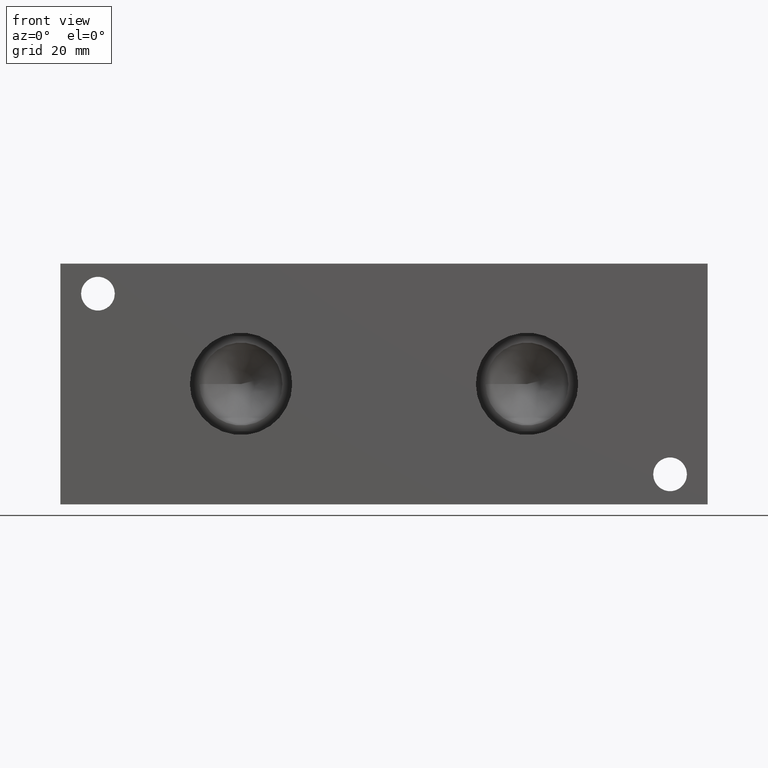
[diagram: clean part render]
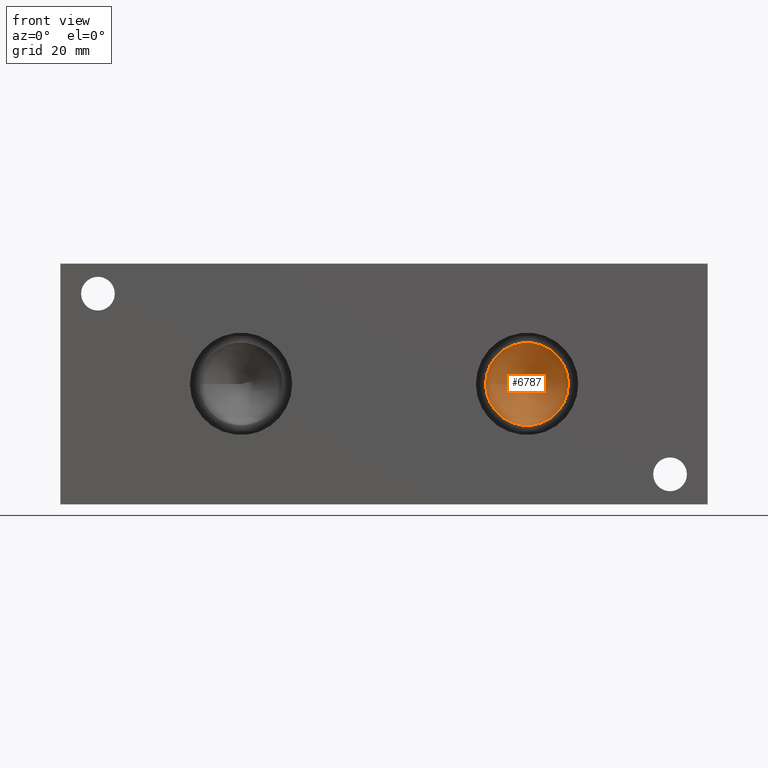
[diagram: same view with one face highlighted and labeled with its STEP entity id]
A machine part, front view. The second image highlights one B-rep face of the part: STEP entity #6787.
In plain terms, the highlighted conical surface has half-angle 60 deg.
Its self-contained STEP definition (entity closure, byte-faithful):
#17=CONICAL_SURFACE('',#7099,4.3688,1.0471975511966);
#95=CIRCLE('',#7100,8.7376);
#96=CIRCLE('',#7101,8.7376);
#697=FACE_OUTER_BOUND('',#1073,.T.);
#1073=EDGE_LOOP('',(#5976,#5977,#5978,#5979));
#1757=LINE('',#11539,#2428);
#2428=VECTOR('',#8351,4.3688);
#3247=VERTEX_POINT('',#11535);
#3248=VERTEX_POINT('',#11536);
#3249=VERTEX_POINT('',#11538);
#4170=EDGE_CURVE('',#3247,#3248,#95,.T.);
#4171=EDGE_CURVE('',#3248,#3249,#1757,.T.);
#4172=EDGE_CURVE('',#3248,#3247,#96,.T.);
#5976=ORIENTED_EDGE('',*,*,#4170,.T.);
#5977=ORIENTED_EDGE('',*,*,#4171,.T.);
#5978=ORIENTED_EDGE('',*,*,#4171,.F.);
#5979=ORIENTED_EDGE('',*,*,#4172,.T.);
#6787=ADVANCED_FACE('',(#697),#17,.F.);
#7099=AXIS2_PLACEMENT_3D('',#11534,#8347,#8348);
#7100=AXIS2_PLACEMENT_3D('',#11537,#8349,#8350);
#7101=AXIS2_PLACEMENT_3D('',#11540,#8352,#8353);
#8347=DIRECTION('center_axis',(0.,-1.,0.));
#8348=DIRECTION('ref_axis',(1.,0.,0.));
#8349=DIRECTION('center_axis',(0.,-1.,0.));
#8350=DIRECTION('ref_axis',(1.,0.,0.));
#8351=DIRECTION('',(0.866025403784439,0.5,1.06057523872491E-16));
#8352=DIRECTION('center_axis',(0.,-1.,0.));
#8353=DIRECTION('ref_axis',(1.,0.,0.));
#11534=CARTESIAN_POINT('Origin',(98.425,18.3937978560356,25.4));
#11535=CARTESIAN_POINT('',(107.1626,15.87147,25.4));
#11536=CARTESIAN_POINT('',(89.6874,15.87147,25.4));
#11537=CARTESIAN_POINT('Origin',(98.425,15.87147,25.4));
#11538=CARTESIAN_POINT('',(98.425,20.9161257120713,25.4));
#11539=CARTESIAN_POINT('',(94.0562,18.3937978560356,25.4));
#11540=CARTESIAN_POINT('Origin',(98.425,15.87147,25.4));